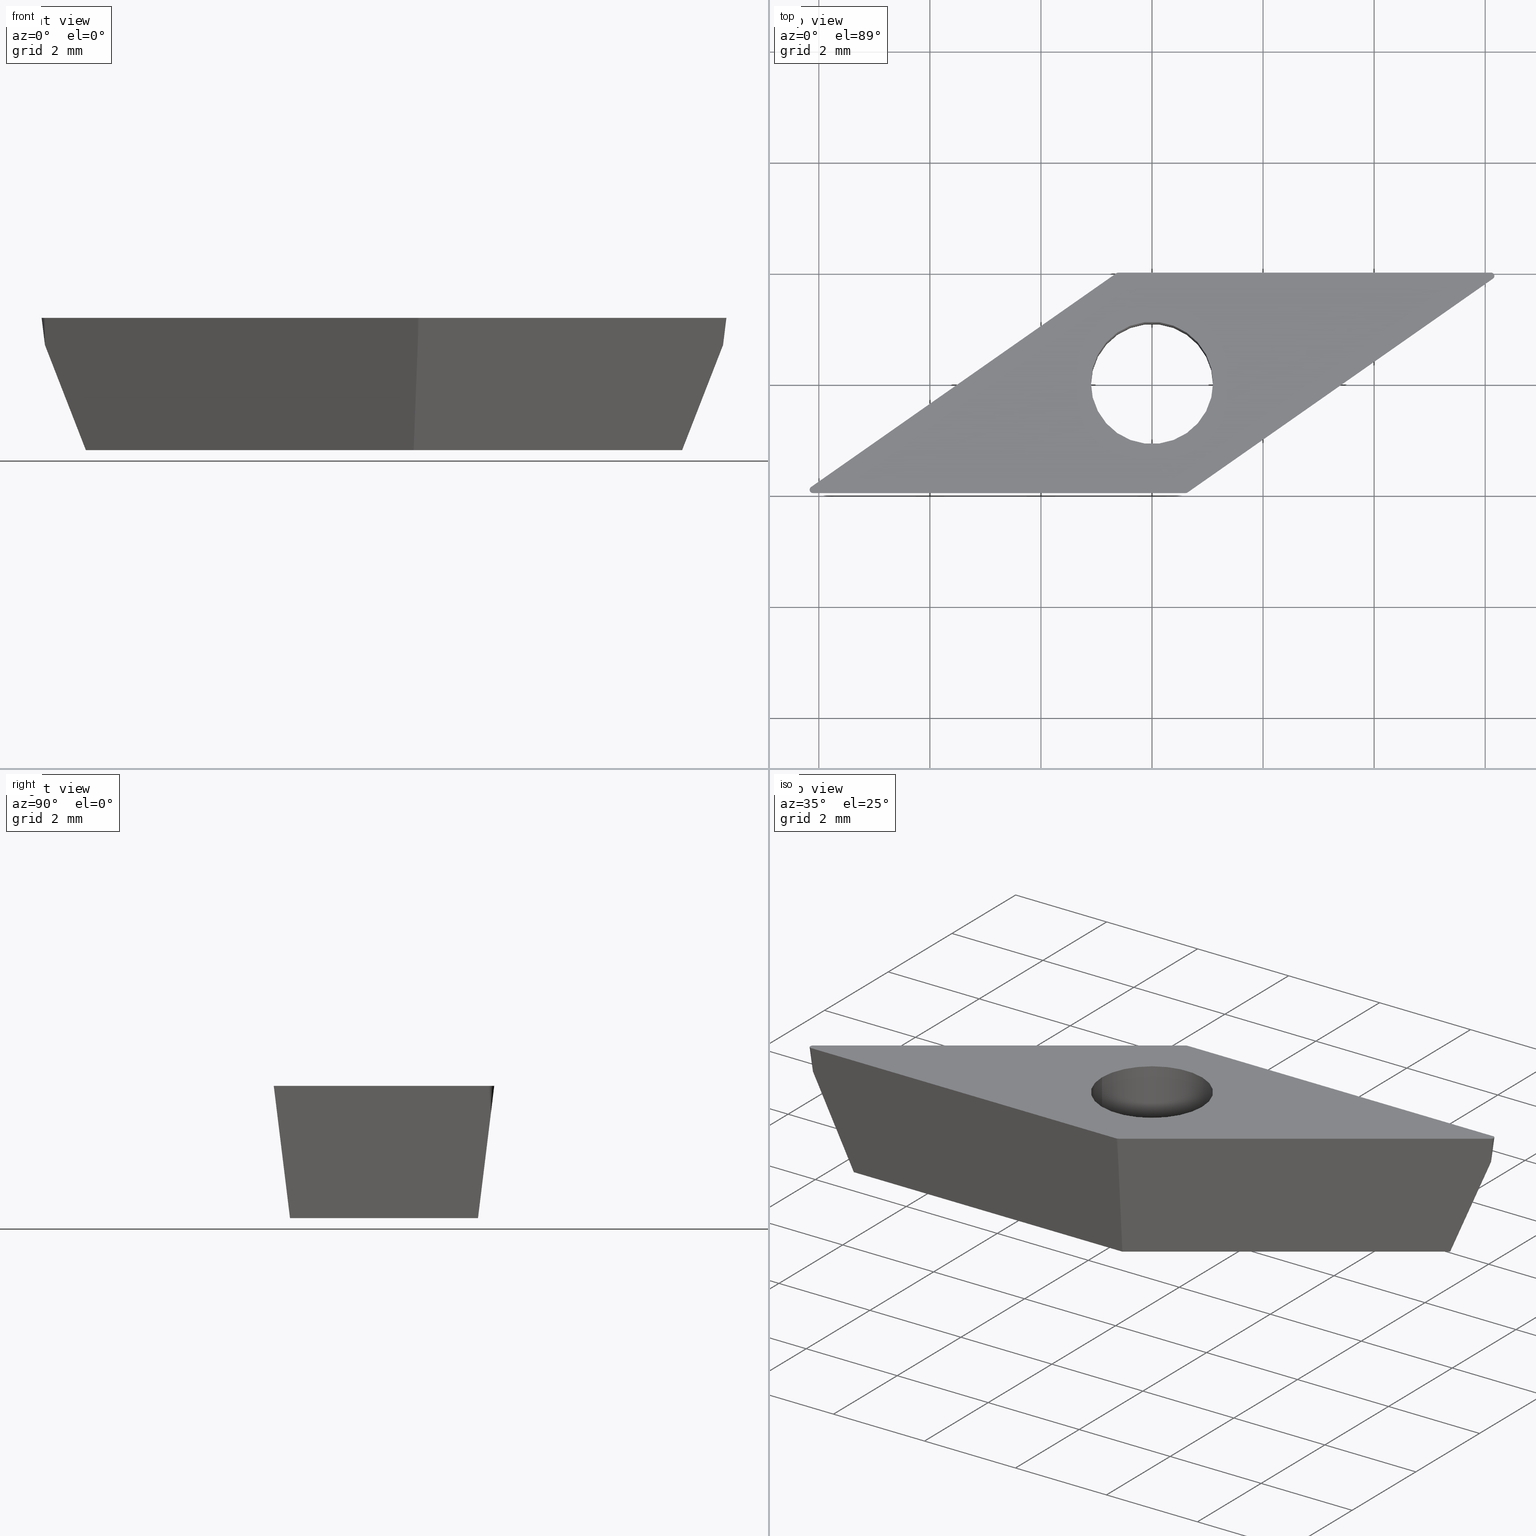
[diagram: canonical four-view strip — front | top / right | iso, engineering-drawing reading convention]
A machine part, canonical four-view strip (front | top / right | iso — engineering-drawing reading convention). The complete STEP part file that produces these views, byte-faithful:
ISO-10303-21;
HEADER;
FILE_DESCRIPTION (( 'STEP AP214' ),
    '1' );
FILE_NAME ('VC.. 0702006.step',
    '2017-03-30T12:57:30',
    ( '' ),
    ( '' ),
    'SwSTEP 2.0',
    'SolidWorks 2016',
    '' );
FILE_SCHEMA (( 'AUTOMOTIVE_DESIGN' ));
ENDSEC;

DATA;
#1 = FILL_AREA_STYLE ('',( #28 ) ) ;
#2 = B_SPLINE_SURFACE_WITH_KNOTS ( 'NONE', 1, 3, ( 
 ( #154, #255, #249, #193 ),
 ( #91, #301, #257, #195 ) ),
 .UNSPECIFIED., .F., .F., .F.,
 ( 2, 2 ),
 ( 4, 4 ),
 ( 0.0000000000000000000, 1.000000000000000000 ),
 ( -0.006902565851283072100, -0.0001902956881417939700 ),
 .UNSPECIFIED. ) ;
#3 = VECTOR ( 'NONE', #38, 1000.000000000000000 ) ;
#4 = EDGE_CURVE ( 'NONE', #406, #430, #256, .T. ) ;
#5 = FACE_BOUND ( 'NONE', #371, .T. ) ;
#6 =( NAMED_UNIT ( * ) SI_UNIT ( $, .STERADIAN. ) SOLID_ANGLE_UNIT ( ) );
#7 =( NAMED_UNIT ( * ) PLANE_ANGLE_UNIT ( ) SI_UNIT ( $, .RADIAN. ) );
#8 = PRODUCT_DEFINITION_SHAPE ( 'NONE', 'NONE',  #220 ) ;
#9 = FACE_OUTER_BOUND ( 'NONE', #426, .T. ) ;
#10 =( LENGTH_UNIT ( ) NAMED_UNIT ( * ) SI_UNIT ( .MILLI., .METRE. ) );
#11 = SURFACE_STYLE_USAGE ( .BOTH. , #17 ) ;
#12 = DIRECTION ( 'NONE',  ( 1.000000000000000000, 0.0000000000000000000, 0.0000000000000000000 ) ) ;
#13 = DIRECTION ( 'NONE',  ( 0.0000000000000000000, 0.0000000000000000000, 1.000000000000000000 ) ) ;
#14 = B_SPLINE_SURFACE_WITH_KNOTS ( 'NONE', 1, 3, ( 
 ( #274, #261, #273, #279 ),
 ( #278, #276, #286, #283 ) ),
 .UNSPECIFIED., .F., .F., .F.,
 ( 2, 2 ),
 ( 4, 4 ),
 ( 0.0000000000000000000, 1.000000000000000000 ),
 ( -0.006902565851283074700, -0.0001902956881417941400 ),
 .UNSPECIFIED. ) ;
#15 = LINE ( 'NONE', #39, #3 ) ;
#16 = CARTESIAN_POINT ( 'NONE',  ( 0.0000000000000000000, 0.0000000000000000000, -2.379999999999999900 ) ) ;
#17 = SURFACE_SIDE_STYLE ('',( #452 ) ) ;
#18 = AXIS2_PLACEMENT_3D ( 'NONE', #234, #232, #231 ) ;
#19 = VECTOR ( 'NONE', #221, 1000.000000000000000 ) ;
#20 = CARTESIAN_POINT ( 'NONE',  ( 0.0000000000000000000, 0.0000000000000000000, 0.0000000000000000000 ) ) ;
#21 = CARTESIAN_POINT ( 'NONE',  ( 6.105319994549239100, 1.985000000000001400, 0.0000000000000000000 ) ) ;
#22 = EDGE_CURVE ( 'NONE', #332, #444, #191, .T. ) ;
#23 = PRODUCT_DEFINITION_CONTEXT ( 'detailed design', #432, 'design' ) ;
#24 = LINE ( 'NONE', #46, #19 ) ;
#25 = CARTESIAN_POINT ( 'NONE',  ( 0.0000000000000000000, 0.0000000000000000000, 0.0000000000000000000 ) ) ;
#26 = VECTOR ( 'NONE', #81, 1000.000000000000000 ) ;
#27 = LINE ( 'NONE', #72, #26 ) ;
#28 = FILL_AREA_STYLE_COLOUR ( '', #97 ) ;
#29 = VECTOR ( 'NONE', #47, 1000.000000000000000 ) ;
#30 = ADVANCED_BREP_SHAPE_REPRESENTATION ( 'VC.. 0702006', ( #95, #199 ), #132 ) ;
#31 = DIRECTION ( 'NONE',  ( -1.000000000000000000, 0.0000000000000000000, 0.0000000000000000000 ) ) ;
#32 = FACE_OUTER_BOUND ( 'NONE', #265, .T. ) ;
#33 = VECTOR ( 'NONE', #103, 1000.000000000000000 ) ;
#34 = CARTESIAN_POINT ( 'NONE',  ( 3.867896606835475600, 1.985000000000001400, 0.0000000000000000000 ) ) ;
#35 = EDGE_CURVE ( 'NONE', #318, #332, #443, .T. ) ;
#36 = CARTESIAN_POINT ( 'NONE',  ( -6.105319994549243600, -1.985000000000001400, 0.0000000000000000000 ) ) ;
#37 = LINE ( 'NONE', #58, #29 ) ;
#38 = DIRECTION ( 'NONE',  ( 0.0000000000000000000, 0.0000000000000000000, 1.000000000000000000 ) ) ;
#39 = CARTESIAN_POINT ( 'NONE',  ( -1.100000000000000100, 1.347111479062088500E-016, -2.379999999999999900 ) ) ;
#40 = EDGE_CURVE ( 'NONE', #359, #373, #308, .T. ) ;
#41 = EDGE_CURVE ( 'NONE', #381, #359, #252, .T. ) ;
#42 = DIRECTION ( 'NONE',  ( 0.0000000000000000000, 0.0000000000000000000, 1.000000000000000000 ) ) ;
#43 = CARTESIAN_POINT ( 'NONE',  ( 0.5337291963620123300, -1.692772745051087200, -2.379999999999999900 ) ) ;
#44 = LINE ( 'NONE', #90, #33 ) ;
#45 = VECTOR ( 'NONE', #122, 1000.000000000000000 ) ;
#46 = CARTESIAN_POINT ( 'NONE',  ( -0.6069501685920396500, 1.984999999999999900, 0.0000000000000000000 ) ) ;
#47 = DIRECTION ( 'NONE',  ( 1.000000000000000000, 1.253144218394544500E-016, -0.0000000000000000000 ) ) ;
#48 = LINE ( 'NONE', #143, #45 ) ;
#49 = APPLICATION_PROTOCOL_DEFINITION ( 'draft international standard', 'automotive_design', 1998, #432 ) ;
#50 = FACE_OUTER_BOUND ( 'NONE', #433, .T. ) ;
#51 = PRESENTATION_LAYER_ASSIGNMENT (  '', '', ( #435 ) ) ;
#52 = PRODUCT_DEFINITION_SHAPE ( 'NONE', 'NONE',  #240 ) ;
#53 = EDGE_CURVE ( 'NONE', #454, #298, #323, .T. ) ;
#54 = DIRECTION ( 'NONE',  ( -1.000000000000000000, 0.0000000000000000000, 0.0000000000000000000 ) ) ;
#55 = CARTESIAN_POINT ( 'NONE',  ( 6.105319994549242700, 1.925000000000001600, 0.0000000000000000000 ) ) ;
#56 = CARTESIAN_POINT ( 'NONE',  ( -5.982564868755330800, -1.886295457508516700, -0.8038839880653910800 ) ) ;
#57 = LINE ( 'NONE', #148, #63 ) ;
#58 = CARTESIAN_POINT ( 'NONE',  ( 0.6258680959247784300, -1.985000000000000800, 0.0000000000000000000 ) ) ;
#59 = EDGE_CURVE ( 'NONE', #437, #304, #258, .T. ) ;
#60 = VECTOR ( 'NONE', #216, 1000.000000000000000 ) ;
#61 = CARTESIAN_POINT ( 'NONE',  ( -0.5581361871052711300, 1.770181830034056400, -1.749553595226165200 ) ) ;
#62 = EDGE_CURVE ( 'NONE', #430, #396, #238, .T. ) ;
#63 = VECTOR ( 'NONE', #106, 1000.000000000000200 ) ;
#64 = CARTESIAN_POINT ( 'NONE',  ( -0.6069501685920399800, 1.924999999999999800, 0.0000000000000000000 ) ) ;
#65 = LINE ( 'NONE', #83, #60 ) ;
#66 = LINE ( 'NONE', #197, #76 ) ;
#67 = DIRECTION ( 'NONE',  ( -0.0000000000000000000, -0.0000000000000000000, 1.000000000000000000 ) ) ;
#68 = CARTESIAN_POINT ( 'NONE',  ( 0.6069501685920385400, -1.985000000000000800, 0.0000000000000000000 ) ) ;
#69 =( NAMED_UNIT ( * ) PLANE_ANGLE_UNIT ( ) SI_UNIT ( $, .RADIAN. ) );
#70 = UNCERTAINTY_MEASURE_WITH_UNIT (LENGTH_MEASURE( 1.000000000000000100E-005 ), #10, 'distance_accuracy_value', 'NONE');
#71 = CARTESIAN_POINT ( 'NONE',  ( -5.368789239785836100, -1.692772745051088300, -2.380000000000000300 ) ) ;
#72 = CARTESIAN_POINT ( 'NONE',  ( -6.105319994549243600, -1.985000000000001400, 0.0000000000000000000 ) ) ;
#73 = FACE_OUTER_BOUND ( 'NONE', #364, .T. ) ;
#74 = DIRECTION ( 'NONE',  ( -0.0000000000000000000, -0.0000000000000000000, 1.000000000000000000 ) ) ;
#75 = AXIS2_PLACEMENT_3D ( 'NONE', #472, #475, #94 ) ;
#76 = VECTOR ( 'NONE', #282, 1000.000000000000000 ) ;
#77 = DIRECTION ( 'NONE',  ( -0.0000000000000000000, -0.0000000000000000000, 1.000000000000000000 ) ) ;
#78 = DIRECTION ( 'NONE',  ( 1.000000000000000000, 0.0000000000000000000, 0.0000000000000000000 ) ) ;
#79 = CARTESIAN_POINT ( 'NONE',  ( -0.5337291963618879800, 1.692772745051086300, -2.379999999999999900 ) ) ;
#80 = CARTESIAN_POINT ( 'NONE',  ( -0.6413647547731044000, 1.974149122657338900, 0.0000000000000000000 ) ) ;
#81 = DIRECTION ( 'NONE',  ( -1.527198630877002000E-017, 0.1218693434051477400, -0.9925461516413219800 ) ) ;
#82 = CARTESIAN_POINT ( 'NONE',  ( 0.5337291963620123300, -1.692772745051087200, -2.379999999999999900 ) ) ;
#83 = CARTESIAN_POINT ( 'NONE',  ( -0.6413647547731052800, 1.974149122657338000, 0.0000000000000000000 ) ) ;
#84 =( NAMED_UNIT ( * ) SI_UNIT ( $, .STERADIAN. ) SOLID_ANGLE_UNIT ( ) );
#85 = EDGE_CURVE ( 'NONE', #298, #381, #210, .T. ) ;
#86 = CARTESIAN_POINT ( 'NONE',  ( -1.433776949020602900, -1.692772745051087200, -2.380000000000000300 ) ) ;
#87 = CIRCLE ( 'NONE', #120, 0.05999999999999994200 ) ;
#88 = CONICAL_SURFACE ( 'NONE', #473, 0.06000000000000015700, 0.1221730476396033400 ) ;
#89 = DIRECTION ( 'NONE',  ( 1.000000000000000000, 0.0000000000000000000, 0.0000000000000000000 ) ) ;
#90 = CARTESIAN_POINT ( 'NONE',  ( -6.139734580730306300, -1.875850877342661900, 0.0000000000000000000 ) ) ;
#91 = CARTESIAN_POINT ( 'NONE',  ( -0.4402271537752110400, 1.686894858711301500, -2.855999999999999400 ) ) ;
#92 = CIRCLE ( 'NONE', #449, 0.06000000000000015700 ) ;
#93 = CIRCLE ( 'NONE', #18, 1.100000000000000100 ) ;
#94 = DIRECTION ( 'NONE',  ( -1.000000000000000000, 0.0000000000000000000, 0.0000000000000000000 ) ) ;
#95 = MANIFOLD_SOLID_BREP ( 'Formschr�ge1', #409 ) ;
#96 = CIRCLE ( 'NONE', #458, 1.100000000000000100 ) ;
#97 = COLOUR_RGB ( '',0.7960784313725489700, 0.8235294117647058400, 0.9372549019607843100 ) ;
#98 = CONICAL_SURFACE ( 'NONE', #112, 0.06000000000000015700, 0.1221730476396033400 ) ;
#99 = CARTESIAN_POINT ( 'NONE',  ( -5.368789239785836100, -1.692772745051088300, -2.380000000000000300 ) ) ;
#100 = PRODUCT ( 'VC.. 0702006', 'VC.. 0702006', '', ( #225 ) ) ;
#101 = CARTESIAN_POINT ( 'NONE',  ( 0.6413647547731018400, -1.974149122657340700, 0.0000000000000000000 ) ) ;
#102 = APPLICATION_PROTOCOL_DEFINITION ( 'draft international standard', 'automotive_design', 1998, #374 ) ;
#103 = DIRECTION ( 'NONE',  ( -0.06990138369076599700, 0.09982952178648429900, 0.9925461516413219800 ) ) ;
#104 = CYLINDRICAL_SURFACE ( 'NONE', #260, 1.100000000000000100 ) ;
#105 = AXIS2_PLACEMENT_3D ( 'NONE', #136, #326, #31 ) ;
#106 = DIRECTION ( 'NONE',  ( -0.8191520442889948000, -0.5735764363510418300, -0.0000000000000000000 ) ) ;
#107 = FACE_OUTER_BOUND ( 'NONE', #441, .T. ) ;
#108 = CARTESIAN_POINT ( 'NONE',  ( 5.737054617167976800, 1.808886372525546200, -1.434330392839228400 ) ) ;
#109 = CARTESIAN_POINT ( 'NONE',  ( 1.100000000000000100, 0.0000000000000000000, 0.0000000000000000000 ) ) ;
#110 = DIRECTION ( 'NONE',  ( 0.0000000000000000000, 0.0000000000000000000, 1.000000000000000000 ) ) ;
#111 = CONICAL_SURFACE ( 'NONE', #414, 0.06000000000000015700, 0.1221730476396033400 ) ;
#112 = AXIS2_PLACEMENT_3D ( 'NONE', #209, #74, #174 ) ;
#113 = UNCERTAINTY_MEASURE_WITH_UNIT (LENGTH_MEASURE( 1.000000000000000100E-005 ), #340, 'distance_accuracy_value', 'NONE');
#114 = CARTESIAN_POINT ( 'NONE',  ( -0.5337291963618879800, 1.692772745051086300, -2.379999999999999900 ) ) ;
#115 = CARTESIAN_POINT ( 'NONE',  ( 1.433776949021000800, 1.692772745051086300, -2.379999999999999400 ) ) ;
#116 = FACE_OUTER_BOUND ( 'NONE', #149, .T. ) ;
#117 = VERTEX_POINT ( 'NONE', #317 ) ;
#118 = CARTESIAN_POINT ( 'NONE',  ( -3.401283094403221100, -1.692772745051088100, -2.380000000000000300 ) ) ;
#119 = EDGE_CURVE ( 'NONE', #453, #378, #183, .T. ) ;
#120 = AXIS2_PLACEMENT_3D ( 'NONE', #185, #181, #180 ) ;
#121 = EDGE_CURVE ( 'NONE', #444, #378, #235, .T. ) ;
#122 = DIRECTION ( 'NONE',  ( 3.054397261754003300E-017, -0.1218693434051477400, -0.9925461516413219800 ) ) ;
#123 = CARTESIAN_POINT ( 'NONE',  ( 6.105319994549240900, 1.985000000000001400, 0.0000000000000000000 ) ) ;
#124 = DIRECTION ( 'NONE',  ( 0.0000000000000000000, 0.0000000000000000000, -1.000000000000000000 ) ) ;
#125 = CARTESIAN_POINT ( 'NONE',  ( 6.105319994549239100, 1.925000000000001400, -0.4886607856784761000 ) ) ;
#126 = FACE_OUTER_BOUND ( 'NONE', #353, .T. ) ;
#127 = CARTESIAN_POINT ( 'NONE',  ( 3.401283094403876100, 1.692772745051087700, -2.379999999999999400 ) ) ;
#128 = FACE_OUTER_BOUND ( 'NONE', #152, .T. ) ;
#129 = FACE_OUTER_BOUND ( 'NONE', #354, .T. ) ;
#130 = DIRECTION ( 'NONE',  ( 0.06990138369076599700, -0.09982952178648427100, 0.9925461516413219800 ) ) ;
#131 = LINE ( 'NONE', #176, #168 ) ;
#132 =( GEOMETRIC_REPRESENTATION_CONTEXT ( 3 ) GLOBAL_UNCERTAINTY_ASSIGNED_CONTEXT ( ( #70 ) ) GLOBAL_UNIT_ASSIGNED_CONTEXT ( ( #10, #7, #6 ) ) REPRESENTATION_CONTEXT ( 'NONE', 'WORKASPACE' ) );
#133 = EDGE_CURVE ( 'NONE', #378, #437, #178, .T. ) ;
#134 = CONICAL_SURFACE ( 'NONE', #412, 0.06000000000000004600, 0.1221730476396033400 ) ;
#135 = UNCERTAINTY_MEASURE_WITH_UNIT (LENGTH_MEASURE( 1.000000000000000100E-005 ), #456, 'distance_accuracy_value', 'NONE');
#136 = CARTESIAN_POINT ( 'NONE',  ( 0.6069501685920385400, -1.925000000000000700, 0.0000000000000000000 ) ) ;
#137 = DIRECTION ( 'NONE',  ( 0.8191520442889946900, 0.5735764363510419400, -0.0000000000000000000 ) ) ;
#138 = DIRECTION ( 'NONE',  ( -1.000000000000000000, 3.614007241618338900E-015, 0.0000000000000000000 ) ) ;
#139 = CARTESIAN_POINT ( 'NONE',  ( -0.5337291963618879800, 1.692772745051086300, -2.379999999999999900 ) ) ;
#140 = VECTOR ( 'NONE', #130, 1000.000000000000000 ) ;
#141 = CARTESIAN_POINT ( 'NONE',  ( 1.100000000000000100, 0.0000000000000000000, -2.379999999999999900 ) ) ;
#142 = COLOUR_RGB ( '',0.7960784313725489700, 0.8235294117647058400, 0.9372549019607843100 ) ;
#143 = CARTESIAN_POINT ( 'NONE',  ( 6.105319994549239100, 1.985000000000001400, 0.0000000000000000000 ) ) ;
#144 = PRESENTATION_STYLE_ASSIGNMENT (( #11 ) ) ;
#145 =( GEOMETRIC_REPRESENTATION_CONTEXT ( 3 ) GLOBAL_UNCERTAINTY_ASSIGNED_CONTEXT ( ( #135 ) ) GLOBAL_UNIT_ASSIGNED_CONTEXT ( ( #456, #69, #84 ) ) REPRESENTATION_CONTEXT ( 'NONE', 'WORKASPACE' ) );
#146 = SURFACE_STYLE_FILL_AREA ( #346 ) ;
#147 = CARTESIAN_POINT ( 'NONE',  ( 0.0000000000000000000, 0.0000000000000000000, 0.0000000000000000000 ) ) ;
#148 = CARTESIAN_POINT ( 'NONE',  ( -6.295615682691038600, -1.985000000000001400, 0.0000000000000000000 ) ) ;
#149 = EDGE_LOOP ( 'NONE', ( #407, #423, #424 ) ) ;
#150 = CARTESIAN_POINT ( 'NONE',  ( 0.6069501685920401000, -1.925000000000002000, -0.4886607856784640500 ) ) ;
#151 = MECHANICAL_DESIGN_GEOMETRIC_PRESENTATION_REPRESENTATION (  '', ( #163 ), #145 ) ;
#152 = EDGE_LOOP ( 'NONE', ( #440, #418, #421 ) ) ;
#153 = CARTESIAN_POINT ( 'NONE',  ( -1.100000000000000100, 1.347111479062088500E-016, 0.0000000000000000000 ) ) ;
#154 = CARTESIAN_POINT ( 'NONE',  ( -0.6413647547731052800, 1.974149122657338000, 0.0000000000000000000 ) ) ;
#155 = ORIENTED_EDGE ( 'NONE', *, *, #389, .T. ) ;
#156 = AXIS2_PLACEMENT_3D ( 'NONE', #251, #250, #248 ) ;
#157 = VERTEX_POINT ( 'NONE', #68 ) ;
#158 = ORIENTED_EDGE ( 'NONE', *, *, #62, .T. ) ;
#159 = CARTESIAN_POINT ( 'NONE',  ( -0.6069501685920412100, 1.924999999999996300, -0.4886607856784962500 ) ) ;
#160 = PRESENTATION_LAYER_ASSIGNMENT (  '', '', ( #163 ) ) ;
#161 = CARTESIAN_POINT ( 'NONE',  ( -1.100000000000000100, 1.347111479062088500E-016, -2.379999999999999900 ) ) ;
#162 = FACE_BOUND ( 'NONE', #363, .T. ) ;
#163 = STYLED_ITEM ( 'NONE', ( #144 ), #30 ) ;
#164 = ORIENTED_EDGE ( 'NONE', *, *, #4, .T. ) ;
#165 = CARTESIAN_POINT ( 'NONE',  ( -2.145415877502627700, 0.5642575816828707700, -2.379999999999999400 ) ) ;
#166 = AXIS2_PLACEMENT_3D ( 'NONE', #16, #13, #12 ) ;
#167 = CARTESIAN_POINT ( 'NONE',  ( -0.5825431778486549500, 1.847590915017026900, -1.119107190452330600 ) ) ;
#168 = VECTOR ( 'NONE', #402, 1000.000000000000000 ) ;
#169 = CARTESIAN_POINT ( 'NONE',  ( -0.5947466732203474700, 1.886295457508511800, -0.8038839880654133900 ) ) ;
#170 = CARTESIAN_POINT ( 'NONE',  ( -0.5703396824769630900, 1.808886372525541700, -1.434330392839247900 ) ) ;
#171 = CARTESIAN_POINT ( 'NONE',  ( -0.6258680959247806500, 1.984999999999999900, 0.0000000000000000000 ) ) ;
#172 = FACE_OUTER_BOUND ( 'NONE', #394, .T. ) ;
#173 = FACE_OUTER_BOUND ( 'NONE', #436, .T. ) ;
#174 = DIRECTION ( 'NONE',  ( -1.000000000000000000, 0.0000000000000000000, 0.0000000000000000000 ) ) ;
#175 = CARTESIAN_POINT ( 'NONE',  ( 0.6069501685920401000, -1.985000000000000800, 0.0000000000000000000 ) ) ;
#176 = CARTESIAN_POINT ( 'NONE',  ( 0.6413647547731018400, -1.974149122657340700, 0.0000000000000000000 ) ) ;
#177 = CARTESIAN_POINT ( 'NONE',  ( -3.757102558644187500, -0.5642575816841700600, -2.379999999999999400 ) ) ;
#178 = CIRCLE ( 'NONE', #465, 0.06000000000000015700 ) ;
#179 = VECTOR ( 'NONE', #137, 1000.000000000000000 ) ;
#180 = DIRECTION ( 'NONE',  ( -1.000000000000000000, 0.0000000000000000000, 0.0000000000000000000 ) ) ;
#181 = DIRECTION ( 'NONE',  ( -0.0000000000000000000, -0.0000000000000000000, 1.000000000000000000 ) ) ;
#182 = AXIS2_PLACEMENT_3D ( 'NONE', #316, #270, #302 ) ;
#183 = LINE ( 'NONE', #190, #179 ) ;
#184 = DIRECTION ( 'NONE',  ( -1.000000000000000000, 0.0000000000000000000, 0.0000000000000000000 ) ) ;
#185 = CARTESIAN_POINT ( 'NONE',  ( 0.6069501685920385400, -1.925000000000000700, 0.0000000000000000000 ) ) ;
#186 = ADVANCED_FACE ( 'NONE', ( #172 ), #2, .T. ) ;
#187 = CARTESIAN_POINT ( 'NONE',  ( 0.0000000000000000000, 0.0000000000000000000, -2.379999999999999900 ) ) ;
#188 = CARTESIAN_POINT ( 'NONE',  ( 0.5459326917336836400, -1.731477287542573000, -2.064776797613077100 ) ) ;
#189 = CARTESIAN_POINT ( 'NONE',  ( -6.105319994549243600, -1.634327294061305400, -2.855999999999999400 ) ) ;
#190 = CARTESIAN_POINT ( 'NONE',  ( 6.295615682691037700, 1.985000000000001400, 0.0000000000000000000 ) ) ;
#191 = B_SPLINE_CURVE_WITH_KNOTS ( 'NONE', 3,
 ( #431, #368, #370, #108, #464, #338, #376 ),
 .UNSPECIFIED., .F., .F.,
 ( 4, 3, 4 ),
 ( 0.0000000000000000000, 0.001021465989923606000, 0.002042931979847211600 ),
 .UNSPECIFIED. ) ;
#192 = CARTESIAN_POINT ( 'NONE',  ( -6.105319994549243600, -1.925000000000001600, -0.4886607856784739300 ) ) ;
#193 = CARTESIAN_POINT ( 'NONE',  ( -6.139734580730306300, -1.875850877342661900, 0.0000000000000000000 ) ) ;
#194 = EDGE_CURVE ( 'NONE', #453, #117, #131, .T. ) ;
#195 = CARTESIAN_POINT ( 'NONE',  ( -5.938596979732412100, -2.163105141288698400, -2.855999999999999400 ) ) ;
#196 =( GEOMETRIC_REPRESENTATION_CONTEXT ( 3 ) GLOBAL_UNCERTAINTY_ASSIGNED_CONTEXT ( ( #113 ) ) GLOBAL_UNIT_ASSIGNED_CONTEXT ( ( #340, #434, #427 ) ) REPRESENTATION_CONTEXT ( 'NONE', 'WORKASPACE' ) );
#197 = CARTESIAN_POINT ( 'NONE',  ( 0.6069501685920401000, -1.985000000000000800, 0.0000000000000000000 ) ) ;
#198 = CARTESIAN_POINT ( 'NONE',  ( -5.368789239785836100, -1.692772745051088300, -2.380000000000000300 ) ) ;
#199 = AXIS2_PLACEMENT_3D ( 'NONE', #25, #341, #294 ) ;
#200 = CARTESIAN_POINT ( 'NONE',  ( -0.6069501685920412100, 1.924999999999996300, -0.4886607856784962500 ) ) ;
#201 = VERTEX_POINT ( 'NONE', #461 ) ;
#202 = CARTESIAN_POINT ( 'NONE',  ( 0.5581361871053548400, -1.770181830034058600, -1.749553595226154500 ) ) ;
#203 = CARTESIAN_POINT ( 'NONE',  ( 0.5703396824770261600, -1.808886372525544400, -1.434330392839231900 ) ) ;
#204 = B_SPLINE_CURVE_WITH_KNOTS ( 'NONE', 3,
 ( #99, #118, #86, #82 ),
 .UNSPECIFIED., .F., .F.,
 ( 4, 4 ),
 ( 8.673617379884035500E-019, 0.005902518436147849400 ),
 .UNSPECIFIED. ) ;
#205 = CARTESIAN_POINT ( 'NONE',  ( 0.0000000000000000000, 0.0000000000000000000, 0.0000000000000000000 ) ) ;
#206 = ORIENTED_EDGE ( 'NONE', *, *, #448, .F. ) ;
#207 = CARTESIAN_POINT ( 'NONE',  ( -3.867896606835482800, -1.985000000000001400, 0.0000000000000000000 ) ) ;
#208 = ADVANCED_FACE ( 'NONE', ( #173 ), #111, .T. ) ;
#209 = CARTESIAN_POINT ( 'NONE',  ( 6.105319994549242700, 1.925000000000001600, 0.0000000000000000000 ) ) ;
#210 = B_SPLINE_CURVE_WITH_KNOTS ( 'NONE', 3,
 ( #198, #236, #335, #315, #355, #56, #342 ),
 .UNSPECIFIED., .F., .F.,
 ( 4, 3, 4 ),
 ( 0.0000000000000000000, 0.001021465989923774700, 0.002042931979847550300 ),
 .UNSPECIFIED. ) ;
#211 = CARTESIAN_POINT ( 'NONE',  ( 0.5947466732203687800, -1.886295457508516000, -0.8038839880653866300 ) ) ;
#212 = CARTESIAN_POINT ( 'NONE',  ( 6.139734580730305400, 1.875850877342661900, 0.0000000000000000000 ) ) ;
#213 = CARTESIAN_POINT ( 'NONE',  ( -6.105319994549243600, -1.985000000000001400, 0.0000000000000000000 ) ) ;
#214 = PRODUCT_DEFINITION_FORMATION_WITH_SPECIFIED_SOURCE ( 'ANY', '', #447, .NOT_KNOWN. ) ;
#215 = PRODUCT_RELATED_PRODUCT_CATEGORY ( 'part', '', ( #100 ) ) ;
#216 = DIRECTION ( 'NONE',  ( 0.06990138369076599700, -0.09982952178648429900, -0.9925461516413219800 ) ) ;
#217 = CARTESIAN_POINT ( 'NONE',  ( 5.368789239786762500, 1.692772745051088100, -2.379999999999999400 ) ) ;
#218 = PRODUCT_DEFINITION_FORMATION_WITH_SPECIFIED_SOURCE ( 'ANY', '', #100, .NOT_KNOWN. ) ;
#219 = CARTESIAN_POINT ( 'NONE',  ( 0.5825431778486974700, -1.847590915017030400, -1.119107190452309300 ) ) ;
#220 = PRODUCT_DEFINITION ( 'UNKNOWN', '', #218, #23 ) ;
#221 = DIRECTION ( 'NONE',  ( -3.054397261754003300E-017, 0.1218693434051477400, 0.9925461516413219800 ) ) ;
#222 = APPLICATION_CONTEXT ( 'automotive_design' ) ;
#223 = ADVANCED_FACE ( 'NONE', ( #129 ), #227, .T. ) ;
#224 = EDGE_CURVE ( 'NONE', #318, #117, #463, .T. ) ;
#225 = PRODUCT_CONTEXT ( 'NONE', #467, 'mechanical' ) ;
#226 = CARTESIAN_POINT ( 'NONE',  ( -0.5459326917335797200, 1.731477287542571500, -2.064776797613082400 ) ) ;
#227 = B_SPLINE_SURFACE_WITH_KNOTS ( 'NONE', 1, 3, ( 
 ( #36, #207, #259, #175 ),
 ( #189, #269, #253, #271 ) ),
 .UNSPECIFIED., .F., .F., .F.,
 ( 2, 2 ),
 ( 4, 4 ),
 ( 0.0000000000000000000, 1.000000000000000000 ),
 ( -0.006731188090474022300, -1.891792733273991700E-005 ),
 .UNSPECIFIED. ) ;
#228 = AXIS2_PLACEMENT_3D ( 'NONE', #20, #450, #482 ) ;
#229 = PRESENTATION_STYLE_ASSIGNMENT (( #356 ) ) ;
#230 = CARTESIAN_POINT ( 'NONE',  ( 5.368789239786762500, 1.692772745051088100, -2.379999999999999400 ) ) ;
#231 = DIRECTION ( 'NONE',  ( 1.000000000000000000, 0.0000000000000000000, 0.0000000000000000000 ) ) ;
#232 = DIRECTION ( 'NONE',  ( 0.0000000000000000000, 0.0000000000000000000, 1.000000000000000000 ) ) ;
#233 = ADVANCED_FACE ( 'NONE', ( #116 ), #98, .T. ) ;
#234 = CARTESIAN_POINT ( 'NONE',  ( 0.0000000000000000000, 0.0000000000000000000, -2.379999999999999900 ) ) ;
#235 = LINE ( 'NONE', #428, #140 ) ;
#236 = CARTESIAN_POINT ( 'NONE',  ( -5.491544365579727600, -1.731477287542574100, -2.064776797613075300 ) ) ;
#237 = CARTESIAN_POINT ( 'NONE',  ( 6.105319994549239100, 1.634327294061305400, -2.855999999999999400 ) ) ;
#238 = CIRCLE ( 'NONE', #457, 1.100000000000000100 ) ;
#239 = CARTESIAN_POINT ( 'NONE',  ( 0.5337291963620123300, -1.692772745051087200, -2.379999999999999900 ) ) ;
#240 = PRODUCT_DEFINITION ( 'UNKNOWN', '', #214, #272 ) ;
#241 = ADVANCED_FACE ( 'NONE', ( #162, #126 ), #419, .T. ) ;
#242 = VECTOR ( 'NONE', #357, 1000.000000000000000 ) ;
#243 = ADVANCED_FACE ( 'NONE', ( #128 ), #88, .T. ) ;
#244 = VECTOR ( 'NONE', #329, 1000.000000000000000 ) ;
#245 = CARTESIAN_POINT ( 'NONE',  ( -6.165319994549244100, -1.925000000000001600, 0.0000000000000000000 ) ) ;
#246 = ADVANCED_FACE ( 'NONE', ( #107 ), #104, .F. ) ;
#247 = CIRCLE ( 'NONE', #156, 0.06000000000000004600 ) ;
#248 = DIRECTION ( 'NONE',  ( -1.000000000000000000, 3.614007241618345200E-015, 0.0000000000000000000 ) ) ;
#249 = CARTESIAN_POINT ( 'NONE',  ( -4.306944638744127500, -0.5925175440099717000, 0.0000000000000000000 ) ) ;
#250 = DIRECTION ( 'NONE',  ( -0.0000000000000000000, -0.0000000000000000000, 1.000000000000000000 ) ) ;
#251 = CARTESIAN_POINT ( 'NONE',  ( -0.6069501685920399800, 1.924999999999999800, 0.0000000000000000000 ) ) ;
#252 = LINE ( 'NONE', #470, #244 ) ;
#253 = CARTESIAN_POINT ( 'NONE',  ( -1.630473219121719500, -1.634327294061304500, -2.855999999999999400 ) ) ;
#254 = VECTOR ( 'NONE', #331, 1000.000000000000000 ) ;
#255 = CARTESIAN_POINT ( 'NONE',  ( -2.474154696758121800, 0.6908157893229864800, 0.0000000000000000000 ) ) ;
#256 = LINE ( 'NONE', #336, #254 ) ;
#257 = CARTESIAN_POINT ( 'NONE',  ( -4.105807037746341600, -0.8797718079558418700, -2.855999999999999400 ) ) ;
#258 = LINE ( 'NONE', #171, #242 ) ;
#259 = CARTESIAN_POINT ( 'NONE',  ( -1.630473219121719500, -1.985000000000000800, 0.0000000000000000000 ) ) ;
#260 = AXIS2_PLACEMENT_3D ( 'NONE', #397, #392, #403 ) ;
#261 = CARTESIAN_POINT ( 'NONE',  ( 2.474154696759397700, -0.6908157893248112500, 0.0000000000000000000 ) ) ;
#262 = EDGE_CURVE ( 'NONE', #396, #430, #96, .T. ) ;
#263 = CARTESIAN_POINT ( 'NONE',  ( 3.867896606835473900, 1.634327294061305400, -2.855999999999999400 ) ) ;
#264 = DIRECTION ( 'NONE',  ( 1.000000000000000000, 0.0000000000000000000, 0.0000000000000000000 ) ) ;
#265 = EDGE_LOOP ( 'NONE', ( #404, #438, #439 ) ) ;
#266 = B_SPLINE_CURVE_WITH_KNOTS ( 'NONE', 3,
 ( #139, #226, #61, #170, #167, #169, #159 ),
 .UNSPECIFIED., .F., .F.,
 ( 4, 3, 4 ),
 ( 0.0000000000000000000, 0.0009534745450647487100, 0.001906949090129497000 ),
 .UNSPECIFIED. ) ;
#267 = ORIENTED_EDGE ( 'NONE', *, *, #309, .F. ) ;
#268 = DIRECTION ( 'NONE',  ( 0.0000000000000000000, 0.0000000000000000000, 1.000000000000000000 ) ) ;
#269 = CARTESIAN_POINT ( 'NONE',  ( -3.867896606835482800, -1.634327294061305400, -2.855999999999999400 ) ) ;
#270 = DIRECTION ( 'NONE',  ( 0.0000000000000000000, 0.0000000000000000000, -1.000000000000000000 ) ) ;
#271 = CARTESIAN_POINT ( 'NONE',  ( 0.6069501685920401000, -1.634327294061304500, -2.855999999999999400 ) ) ;
#272 = PRODUCT_DEFINITION_CONTEXT ( 'detailed design', #222, 'design' ) ;
#273 = CARTESIAN_POINT ( 'NONE',  ( 4.306944638744942800, 0.5925175440087955300, 0.0000000000000000000 ) ) ;
#274 = CARTESIAN_POINT ( 'NONE',  ( 0.6413647547731018400, -1.974149122657340700, 0.0000000000000000000 ) ) ;
#275 = ORIENTED_EDGE ( 'NONE', *, *, #477, .T. ) ;
#276 = CARTESIAN_POINT ( 'NONE',  ( 2.273017095761504800, -0.4035615253787741000, -2.855999999999999400 ) ) ;
#277 = CARTESIAN_POINT ( 'NONE',  ( 1.630473219121723500, 1.984999999999999900, 0.0000000000000000000 ) ) ;
#278 = CARTESIAN_POINT ( 'NONE',  ( 0.4402271537752075500, -1.686894858711304200, -2.855999999999999400 ) ) ;
#279 = CARTESIAN_POINT ( 'NONE',  ( 6.139734580730305400, 1.875850877342661400, 0.0000000000000000000 ) ) ;
#280 = PRODUCT_RELATED_PRODUCT_CATEGORY ( 'part', '', ( #447 ) ) ;
#281 = CARTESIAN_POINT ( 'NONE',  ( 1.630473219121725900, 1.634327294061303600, -2.855999999999999400 ) ) ;
#282 = DIRECTION ( 'NONE',  ( 1.527198630877002000E-017, -0.1218693434051477400, 0.9925461516413219800 ) ) ;
#283 = CARTESIAN_POINT ( 'NONE',  ( 5.938596979732410300, 2.163105141288697900, -2.855999999999999400 ) ) ;
#284 = EDGE_CURVE ( 'NONE', #201, #359, #92, .T. ) ;
#285 = ORIENTED_EDGE ( 'NONE', *, *, #262, .T. ) ;
#286 = CARTESIAN_POINT ( 'NONE',  ( 4.105807037747390500, 0.8797718079543441800, -2.855999999999999400 ) ) ;
#287 = DIRECTION ( 'NONE',  ( -1.000000000000000000, 0.0000000000000000000, 0.0000000000000000000 ) ) ;
#288 = FACE_OUTER_BOUND ( 'NONE', #442, .T. ) ;
#289 = ORIENTED_EDGE ( 'NONE', *, *, #4, .F. ) ;
#290 = ORIENTED_EDGE ( 'NONE', *, *, #445, .F. ) ;
#291 = ORIENTED_EDGE ( 'NONE', *, *, #284, .F. ) ;
#292 = CIRCLE ( 'NONE', #166, 1.100000000000000100 ) ;
#293 = ORIENTED_EDGE ( 'NONE', *, *, #367, .T. ) ;
#294 = DIRECTION ( 'NONE',  ( 1.000000000000000000, 0.0000000000000000000, 0.0000000000000000000 ) ) ;
#295 = DIRECTION ( 'NONE',  ( -0.0000000000000000000, -0.0000000000000000000, 1.000000000000000000 ) ) ;
#296 = CARTESIAN_POINT ( 'NONE',  ( -6.105319994549243600, -1.925000000000001600, 0.0000000000000000000 ) ) ;
#297 = CARTESIAN_POINT ( 'NONE',  ( -0.6069501685920395400, 1.634327294061303600, -2.855999999999999400 ) ) ;
#298 = VERTEX_POINT ( 'NONE', #71 ) ;
#299 = ORIENTED_EDGE ( 'NONE', *, *, #483, .F. ) ;
#300 = ORIENTED_EDGE ( 'NONE', *, *, #53, .T. ) ;
#301 = CARTESIAN_POINT ( 'NONE',  ( -2.273017095760231100, 0.4035615253769474500, -2.855999999999999400 ) ) ;
#302 = DIRECTION ( 'NONE',  ( -1.000000000000000000, 0.0000000000000000000, -0.0000000000000000000 ) ) ;
#303 = ORIENTED_EDGE ( 'NONE', *, *, #85, .T. ) ;
#304 = VERTEX_POINT ( 'NONE', #377 ) ;
#305 = ORIENTED_EDGE ( 'NONE', *, *, #448, .T. ) ;
#306 = ORIENTED_EDGE ( 'NONE', *, *, #416, .T. ) ;
#307 = ORIENTED_EDGE ( 'NONE', *, *, #483, .T. ) ;
#308 = CIRCLE ( 'NONE', #75, 0.06000000000000015700 ) ;
#309 = EDGE_CURVE ( 'NONE', #387, #406, #93, .T. ) ;
#310 = ORIENTED_EDGE ( 'NONE', *, *, #468, .T. ) ;
#311 = CARTESIAN_POINT ( 'NONE',  ( -0.6069501685920396500, 1.984999999999999900, 0.0000000000000000000 ) ) ;
#312 = ORIENTED_EDGE ( 'NONE', *, *, #59, .F. ) ;
#313 = EDGE_CURVE ( 'NONE', #304, #455, #247, .T. ) ;
#314 = ORIENTED_EDGE ( 'NONE', *, *, #415, .T. ) ;
#315 = CARTESIAN_POINT ( 'NONE',  ( -5.737054617167523900, -1.808886372525546000, -1.434330392839231200 ) ) ;
#316 = CARTESIAN_POINT ( 'NONE',  ( 0.0000000000000000000, 0.0000000000000000000, 0.0000000000000000000 ) ) ;
#317 = CARTESIAN_POINT ( 'NONE',  ( 0.6069501685920401000, -1.925000000000002000, -0.4886607856784640500 ) ) ;
#318 = VERTEX_POINT ( 'NONE', #239 ) ;
#319 = FILL_AREA_STYLE_COLOUR ( '', #142 ) ;
#320 = CARTESIAN_POINT ( 'NONE',  ( -0.5337291963618879800, 1.692772745051086300, -2.379999999999999900 ) ) ;
#321 = ORIENTED_EDGE ( 'NONE', *, *, #22, .F. ) ;
#322 = PLANE ( 'NONE',  #182 ) ;
#323 = B_SPLINE_CURVE_WITH_KNOTS ( 'NONE', 3,
 ( #320, #165, #177, #348 ),
 .UNSPECIFIED., .F., .F.,
 ( 4, 4 ),
 ( 0.0000000000000000000, 0.005902518436147910100 ),
 .UNSPECIFIED. ) ;
#324 = ORIENTED_EDGE ( 'NONE', *, *, #119, .F. ) ;
#325 = DIRECTION ( 'NONE',  ( -0.0000000000000000000, -0.0000000000000000000, 1.000000000000000000 ) ) ;
#326 = DIRECTION ( 'NONE',  ( -0.0000000000000000000, -0.0000000000000000000, 1.000000000000000000 ) ) ;
#327 = CARTESIAN_POINT ( 'NONE',  ( 0.0000000000000000000, 0.0000000000000000000, -2.379999999999999900 ) ) ;
#328 = ORIENTED_EDGE ( 'NONE', *, *, #194, .T. ) ;
#329 = DIRECTION ( 'NONE',  ( -0.1218693434051477400, 0.0000000000000000000, 0.9925461516413219800 ) ) ;
#330 = ORIENTED_EDGE ( 'NONE', *, *, #224, .F. ) ;
#331 = DIRECTION ( 'NONE',  ( 0.0000000000000000000, 0.0000000000000000000, 1.000000000000000000 ) ) ;
#332 = VERTEX_POINT ( 'NONE', #230 ) ;
#333 = ADVANCED_FACE ( 'NONE', ( #73 ), #14, .T. ) ;
#334 = ORIENTED_EDGE ( 'NONE', *, *, #35, .T. ) ;
#335 = CARTESIAN_POINT ( 'NONE',  ( -5.614299491373622600, -1.770181830034060400, -1.749553595226152300 ) ) ;
#336 = CARTESIAN_POINT ( 'NONE',  ( 1.100000000000000100, 0.0000000000000000000, -2.379999999999999900 ) ) ;
#337 = ORIENTED_EDGE ( 'NONE', *, *, #22, .T. ) ;
#338 = CARTESIAN_POINT ( 'NONE',  ( 5.982564868755474700, 1.886295457508516900, -0.8038839880653893000 ) ) ;
#339 = APPLICATION_PROTOCOL_DEFINITION ( 'draft international standard', 'automotive_design', 1998, #467 ) ;
#340 =( LENGTH_UNIT ( ) NAMED_UNIT ( * ) SI_UNIT ( .MILLI., .METRE. ) );
#341 = DIRECTION ( 'NONE',  ( 0.0000000000000000000, 0.0000000000000000000, 1.000000000000000000 ) ) ;
#342 = CARTESIAN_POINT ( 'NONE',  ( -6.105319994549243600, -1.925000000000001600, -0.4886607856784739300 ) ) ;
#343 = CONICAL_SURFACE ( 'NONE', #105, 0.05999999999999994200, 0.1221730476396033400 ) ;
#344 = ORIENTED_EDGE ( 'NONE', *, *, #121, .T. ) ;
#345 = ORIENTED_EDGE ( 'NONE', *, *, #451, .T. ) ;
#346 = FILL_AREA_STYLE ('',( #319 ) ) ;
#347 = ORIENTED_EDGE ( 'NONE', *, *, #224, .T. ) ;
#348 = CARTESIAN_POINT ( 'NONE',  ( -5.368789239785836100, -1.692772745051088300, -2.380000000000000300 ) ) ;
#349 = ORIENTED_EDGE ( 'NONE', *, *, #351, .T. ) ;
#350 = ORIENTED_EDGE ( 'NONE', *, *, #462, .F. ) ;
#351 = EDGE_CURVE ( 'NONE', #117, #157, #66, .T. ) ;
#352 = ORIENTED_EDGE ( 'NONE', *, *, #460, .T. ) ;
#353 = EDGE_LOOP ( 'NONE', ( #365, #366, #372, #380 ) ) ;
#354 = EDGE_LOOP ( 'NONE', ( #345, #347, #349, #350, #352, #360 ) ) ;
#355 = CARTESIAN_POINT ( 'NONE',  ( -5.859809742961425100, -1.847590915017031500, -1.119107190452310200 ) ) ;
#356 = SURFACE_STYLE_USAGE ( .BOTH. , #358 ) ;
#357 = DIRECTION ( 'NONE',  ( -1.000000000000000000, -2.506288436789088400E-016, -0.0000000000000000000 ) ) ;
#358 = SURFACE_SIDE_STYLE ('',( #146 ) ) ;
#359 = VERTEX_POINT ( 'NONE', #245 ) ;
#360 = ORIENTED_EDGE ( 'NONE', *, *, #85, .F. ) ;
#361 = ORIENTED_EDGE ( 'NONE', *, *, #487, .T. ) ;
#362 = ORIENTED_EDGE ( 'NONE', *, *, #309, .T. ) ;
#363 = EDGE_LOOP ( 'NONE', ( #361, #362 ) ) ;
#364 = EDGE_LOOP ( 'NONE', ( #324, #328, #330, #334, #337, #344 ) ) ;
#365 = ORIENTED_EDGE ( 'NONE', *, *, #53, .F. ) ;
#366 = ORIENTED_EDGE ( 'NONE', *, *, #416, .F. ) ;
#367 = EDGE_CURVE ( 'NONE', #455, #375, #65, .T. ) ;
#368 = CARTESIAN_POINT ( 'NONE',  ( 5.491544365580495000, 1.731477287542574100, -2.064776797613073500 ) ) ;
#369 = ORIENTED_EDGE ( 'NONE', *, *, #351, .F. ) ;
#370 = CARTESIAN_POINT ( 'NONE',  ( 5.614299491374231900, 1.770181830034060600, -1.749553595226149400 ) ) ;
#371 = EDGE_LOOP ( 'NONE', ( #383, #384 ) ) ;
#372 = ORIENTED_EDGE ( 'NONE', *, *, #35, .F. ) ;
#373 = VERTEX_POINT ( 'NONE', #213 ) ;
#374 = APPLICATION_CONTEXT ( 'automotive_design' ) ;
#375 = VERTEX_POINT ( 'NONE', #200 ) ;
#376 = CARTESIAN_POINT ( 'NONE',  ( 6.105319994549239100, 1.925000000000001400, -0.4886607856784761000 ) ) ;
#377 = CARTESIAN_POINT ( 'NONE',  ( -0.6069501685920399800, 1.984999999999999900, 0.0000000000000000000 ) ) ;
#378 = VERTEX_POINT ( 'NONE', #212 ) ;
#379 = CARTESIAN_POINT ( 'NONE',  ( -6.105319994549243600, -1.925000000000001600, 0.0000000000000000000 ) ) ;
#380 = ORIENTED_EDGE ( 'NONE', *, *, #451, .F. ) ;
#381 = VERTEX_POINT ( 'NONE', #192 ) ;
#382 = DIRECTION ( 'NONE',  ( -0.0000000000000000000, -0.0000000000000000000, 1.000000000000000000 ) ) ;
#383 = ORIENTED_EDGE ( 'NONE', *, *, #62, .F. ) ;
#384 = ORIENTED_EDGE ( 'NONE', *, *, #262, .F. ) ;
#385 = ORIENTED_EDGE ( 'NONE', *, *, #313, .T. ) ;
#386 = ORIENTED_EDGE ( 'NONE', *, *, #445, .T. ) ;
#387 = VERTEX_POINT ( 'NONE', #161 ) ;
#388 = ORIENTED_EDGE ( 'NONE', *, *, #284, .T. ) ;
#389 = EDGE_CURVE ( 'NONE', #157, #453, #87, .T. ) ;
#390 = ORIENTED_EDGE ( 'NONE', *, *, #40, .T. ) ;
#391 = ORIENTED_EDGE ( 'NONE', *, *, #462, .T. ) ;
#392 = DIRECTION ( 'NONE',  ( 0.0000000000000000000, 0.0000000000000000000, 1.000000000000000000 ) ) ;
#393 = AXIS2_PLACEMENT_3D ( 'NONE', #187, #42, #78 ) ;
#394 = EDGE_LOOP ( 'NONE', ( #290, #293, #299, #300, #303, #305 ) ) ;
#395 = ORIENTED_EDGE ( 'NONE', *, *, #119, .T. ) ;
#396 = VERTEX_POINT ( 'NONE', #153 ) ;
#397 = CARTESIAN_POINT ( 'NONE',  ( 0.0000000000000000000, 0.0000000000000000000, -2.379999999999999900 ) ) ;
#398 = ORIENTED_EDGE ( 'NONE', *, *, #133, .T. ) ;
#399 = ORIENTED_EDGE ( 'NONE', *, *, #477, .F. ) ;
#400 = AXIS2_PLACEMENT_3D ( 'NONE', #327, #124, #413 ) ;
#401 = ORIENTED_EDGE ( 'NONE', *, *, #487, .F. ) ;
#402 = DIRECTION ( 'NONE',  ( -0.06990138369076599700, 0.09982952178648427100, -0.9925461516413219800 ) ) ;
#403 = DIRECTION ( 'NONE',  ( 1.000000000000000000, 0.0000000000000000000, 0.0000000000000000000 ) ) ;
#404 = ORIENTED_EDGE ( 'NONE', *, *, #468, .F. ) ;
#405 = EDGE_LOOP ( 'NONE', ( #474, #385, #386, #388, #390, #391, #155, #395, #398 ) ) ;
#406 = VERTEX_POINT ( 'NONE', #141 ) ;
#407 = ORIENTED_EDGE ( 'NONE', *, *, #121, .F. ) ;
#408 = PRODUCT_CONTEXT ( 'NONE', #374, 'mechanical' ) ;
#409 = CLOSED_SHELL ( 'NONE', ( #208, #479, #186, #480, #333, #223, #241, #481, #246, #476, #485, #233, #243 ) ) ;
#410 = CARTESIAN_POINT ( 'NONE',  ( -6.105319994549243600, -1.925000000000001600, 0.0000000000000000000 ) ) ;
#411 = MECHANICAL_DESIGN_GEOMETRIC_PRESENTATION_REPRESENTATION (  '', ( #435 ), #196 ) ;
#412 = AXIS2_PLACEMENT_3D ( 'NONE', #64, #77, #54 ) ;
#413 = DIRECTION ( 'NONE',  ( -1.000000000000000000, 0.0000000000000000000, -0.0000000000000000000 ) ) ;
#414 = AXIS2_PLACEMENT_3D ( 'NONE', #379, #382, #184 ) ;
#415 = EDGE_CURVE ( 'NONE', #437, #444, #48, .T. ) ;
#416 = EDGE_CURVE ( 'NONE', #332, #454, #469, .T. ) ;
#417 = DIRECTION ( 'NONE',  ( -1.000000000000000000, 0.0000000000000000000, 0.0000000000000000000 ) ) ;
#418 = ORIENTED_EDGE ( 'NONE', *, *, #460, .F. ) ;
#419 = PLANE ( 'NONE',  #400 ) ;
#420 = ORIENTED_EDGE ( 'NONE', *, *, #41, .T. ) ;
#421 = ORIENTED_EDGE ( 'NONE', *, *, #40, .F. ) ;
#422 = ORIENTED_EDGE ( 'NONE', *, *, #389, .F. ) ;
#423 = ORIENTED_EDGE ( 'NONE', *, *, #415, .F. ) ;
#424 = ORIENTED_EDGE ( 'NONE', *, *, #133, .F. ) ;
#425 = SHAPE_DEFINITION_REPRESENTATION ( #52, #30 ) ;
#426 = EDGE_LOOP ( 'NONE', ( #306, #307, #310, #312, #314, #321 ) ) ;
#427 =( NAMED_UNIT ( * ) SI_UNIT ( $, .STERADIAN. ) SOLID_ANGLE_UNIT ( ) );
#428 = CARTESIAN_POINT ( 'NONE',  ( 6.139734580730305400, 1.875850877342661400, 0.0000000000000000000 ) ) ;
#429 = ORIENTED_EDGE ( 'NONE', *, *, #194, .F. ) ;
#430 = VERTEX_POINT ( 'NONE', #109 ) ;
#431 = CARTESIAN_POINT ( 'NONE',  ( 5.368789239786762500, 1.692772745051088100, -2.379999999999999400 ) ) ;
#432 = APPLICATION_CONTEXT ( 'automotive_design' ) ;
#433 = EDGE_LOOP ( 'NONE', ( #267, #275, #285, #289 ) ) ;
#434 =( NAMED_UNIT ( * ) PLANE_ANGLE_UNIT ( ) SI_UNIT ( $, .RADIAN. ) );
#435 = STYLED_ITEM ( 'NONE', ( #229 ), #95 ) ;
#436 = EDGE_LOOP ( 'NONE', ( #206, #420, #291 ) ) ;
#437 = VERTEX_POINT ( 'NONE', #123 ) ;
#438 = ORIENTED_EDGE ( 'NONE', *, *, #367, .F. ) ;
#439 = ORIENTED_EDGE ( 'NONE', *, *, #313, .F. ) ;
#440 = ORIENTED_EDGE ( 'NONE', *, *, #41, .F. ) ;
#441 = EDGE_LOOP ( 'NONE', ( #399, #401, #164, #158 ) ) ;
#442 = EDGE_LOOP ( 'NONE', ( #369, #429, #422 ) ) ;
#443 = B_SPLINE_CURVE_WITH_KNOTS ( 'NONE', 3,
 ( #459, #471, #486, #446 ),
 .UNSPECIFIED., .F., .F.,
 ( 4, 4 ),
 ( 0.0000000000000000000, 0.005902518436148567600 ),
 .UNSPECIFIED. ) ;
#444 = VERTEX_POINT ( 'NONE', #125 ) ;
#445 = EDGE_CURVE ( 'NONE', #455, #201, #57, .T. ) ;
#446 = CARTESIAN_POINT ( 'NONE',  ( 5.368789239786762500, 1.692772745051088100, -2.379999999999999400 ) ) ;
#447 = PRODUCT ( 'VC.. 0702006', 'VC.. 0702006', '', ( #408 ) ) ;
#448 = EDGE_CURVE ( 'NONE', #381, #201, #44, .T. ) ;
#449 = AXIS2_PLACEMENT_3D ( 'NONE', #296, #295, #287 ) ;
#450 = DIRECTION ( 'NONE',  ( 0.0000000000000000000, 0.0000000000000000000, 1.000000000000000000 ) ) ;
#451 = EDGE_CURVE ( 'NONE', #298, #318, #204, .T. ) ;
#452 = SURFACE_STYLE_FILL_AREA ( #1 ) ;
#453 = VERTEX_POINT ( 'NONE', #101 ) ;
#454 = VERTEX_POINT ( 'NONE', #79 ) ;
#455 = VERTEX_POINT ( 'NONE', #80 ) ;
#456 =( LENGTH_UNIT ( ) NAMED_UNIT ( * ) SI_UNIT ( .MILLI., .METRE. ) );
#457 = AXIS2_PLACEMENT_3D ( 'NONE', #205, #268, #264 ) ;
#458 = AXIS2_PLACEMENT_3D ( 'NONE', #147, #110, #89 ) ;
#459 = CARTESIAN_POINT ( 'NONE',  ( 0.5337291963620123300, -1.692772745051087200, -2.379999999999999900 ) ) ;
#460 = EDGE_CURVE ( 'NONE', #373, #381, #27, .T. ) ;
#461 = CARTESIAN_POINT ( 'NONE',  ( -6.139734580730306300, -1.875850877342662100, 0.0000000000000000000 ) ) ;
#462 = EDGE_CURVE ( 'NONE', #373, #157, #37, .T. ) ;
#463 = B_SPLINE_CURVE_WITH_KNOTS ( 'NONE', 3,
 ( #43, #188, #202, #203, #219, #211, #150 ),
 .UNSPECIFIED., .F., .F.,
 ( 4, 3, 4 ),
 ( 0.0000000000000000000, 0.0009534745450647622600, 0.001906949090129524700 ),
 .UNSPECIFIED. ) ;
#464 = CARTESIAN_POINT ( 'NONE',  ( 5.859809742961721700, 1.847590915017031800, -1.119107190452307300 ) ) ;
#465 = AXIS2_PLACEMENT_3D ( 'NONE', #55, #67, #138 ) ;
#466 = APPLICATION_PROTOCOL_DEFINITION ( 'draft international standard', 'automotive_design', 1998, #222 ) ;
#467 = APPLICATION_CONTEXT ( 'automotive_design' ) ;
#468 = EDGE_CURVE ( 'NONE', #375, #304, #24, .T. ) ;
#469 = B_SPLINE_CURVE_WITH_KNOTS ( 'NONE', 3,
 ( #217, #127, #115, #114 ),
 .UNSPECIFIED., .F., .F.,
 ( 4, 4 ),
 ( 8.673617379884035500E-019, 0.005902518436148649100 ),
 .UNSPECIFIED. ) ;
#470 = CARTESIAN_POINT ( 'NONE',  ( -6.165319994549244100, -1.925000000000001600, 0.0000000000000000000 ) ) ;
#471 = CARTESIAN_POINT ( 'NONE',  ( 2.145415877504024800, -0.5642575816843080600, -2.380000000000000300 ) ) ;
#472 = CARTESIAN_POINT ( 'NONE',  ( -6.105319994549243600, -1.925000000000001600, 0.0000000000000000000 ) ) ;
#473 = AXIS2_PLACEMENT_3D ( 'NONE', #410, #325, #417 ) ;
#474 = ORIENTED_EDGE ( 'NONE', *, *, #59, .T. ) ;
#475 = DIRECTION ( 'NONE',  ( -0.0000000000000000000, -0.0000000000000000000, 1.000000000000000000 ) ) ;
#476 = ADVANCED_FACE ( 'NONE', ( #32 ), #134, .T. ) ;
#477 = EDGE_CURVE ( 'NONE', #387, #396, #15, .T. ) ;
#478 = CYLINDRICAL_SURFACE ( 'NONE', #393, 1.100000000000000100 ) ;
#479 = ADVANCED_FACE ( 'NONE', ( #50 ), #478, .F. ) ;
#480 = ADVANCED_FACE ( 'NONE', ( #9 ), #484, .T. ) ;
#481 = ADVANCED_FACE ( 'NONE', ( #5, #488 ), #322, .F. ) ;
#482 = DIRECTION ( 'NONE',  ( 1.000000000000000000, 0.0000000000000000000, 0.0000000000000000000 ) ) ;
#483 = EDGE_CURVE ( 'NONE', #454, #375, #266, .T. ) ;
#484 = B_SPLINE_SURFACE_WITH_KNOTS ( 'NONE', 1, 3, ( 
 ( #21, #34, #277, #311 ),
 ( #237, #263, #281, #297 ) ),
 .UNSPECIFIED., .F., .F., .F.,
 ( 2, 2 ),
 ( 4, 4 ),
 ( 0.0000000000000000000, 1.000000000000000000 ),
 ( -0.006731188090474020600, -1.891792733274067200E-005 ),
 .UNSPECIFIED. ) ;
#485 = ADVANCED_FACE ( 'NONE', ( #288 ), #343, .T. ) ;
#486 = CARTESIAN_POINT ( 'NONE',  ( 3.757102558645672600, 0.5642575816829925600, -2.380000000000000300 ) ) ;
#487 = EDGE_CURVE ( 'NONE', #406, #387, #292, .T. ) ;
#488 = FACE_OUTER_BOUND ( 'NONE', #405, .T. ) ;
ENDSEC;
END-ISO-10303-21;
